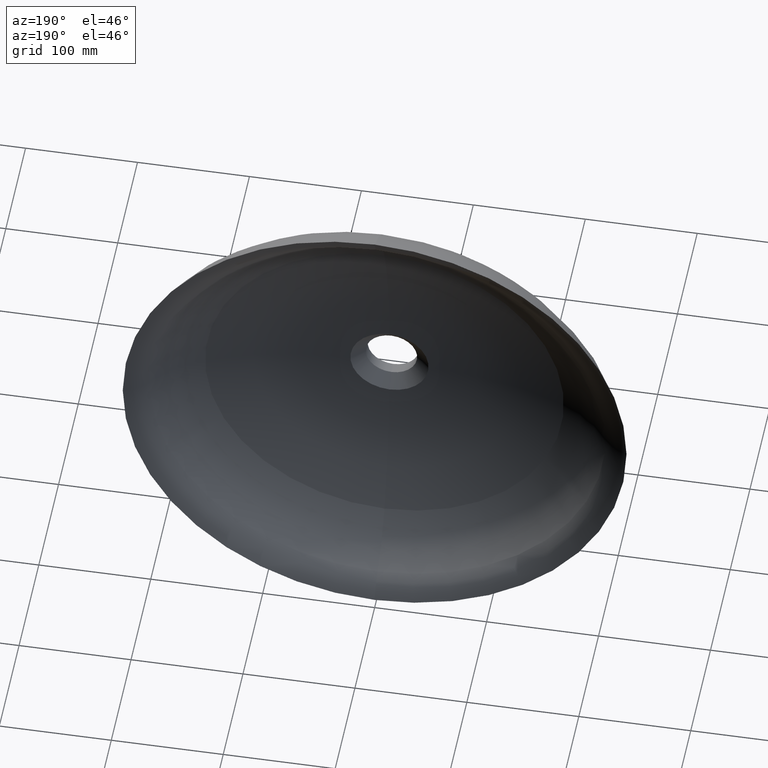
[diagram: clean part render]
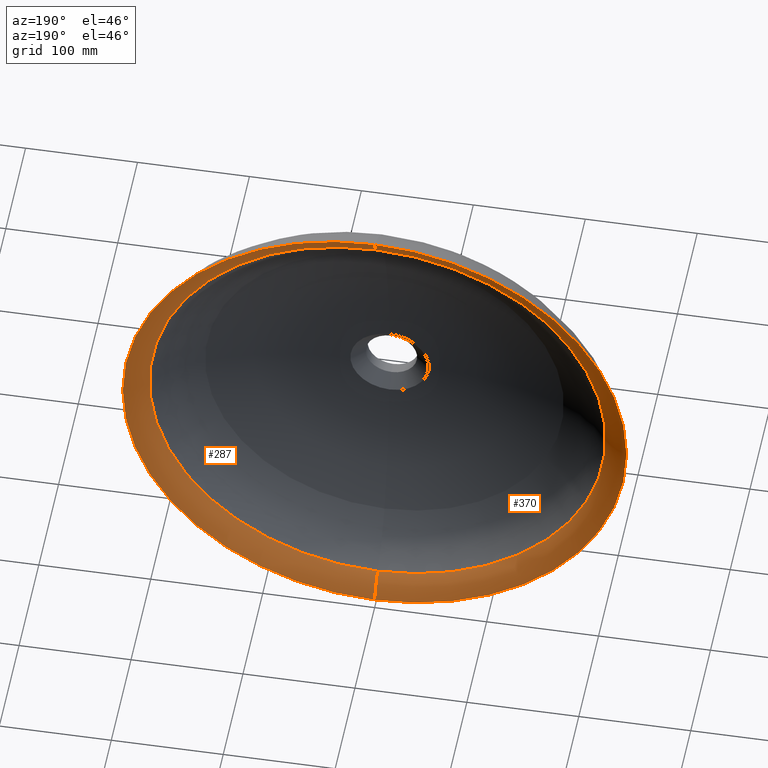
[diagram: same view with one multi-face feature highlighted, each face labeled with its STEP entity id]
A machine part, auxiliary view. The highlighted faces form ONE feature: a constant-radius fillet chain: 2 tangent blend faces with common blend radius 38.5109 mm. The faces share edges in the B-rep.
Their STEP definitions:
[1] entity #287 (Torus):
#18 = DIRECTION ( 'NONE',  ( 1.000000000000000000, 0.0000000000000000000, 1.224646799147353207E-16 ) ) ;
#27 = ORIENTED_EDGE ( 'NONE', *, *, #62, .T. ) ;
#50 = FACE_OUTER_BOUND ( 'NONE', #74, .T. ) ;
#55 = CARTESIAN_POINT ( 'NONE',  ( 5.658126656586371938E-14, -37.08579791896572431, -235.3796292147611666 ) ) ;
#57 = AXIS2_PLACEMENT_3D ( 'NONE', #55, #18, #292 ) ;
#62 = EDGE_CURVE ( 'NONE', #230, #318, #81, .T. ) ;
#63 = AXIS2_PLACEMENT_3D ( 'NONE', #159, #116, #154 ) ;
#64 = AXIS2_PLACEMENT_3D ( 'NONE', #119, #441, #319 ) ;
#74 = EDGE_LOOP ( 'NONE', ( #337, #27, #389, #258 ) ) ;
#81 = CIRCLE ( 'NONE', #57, 38.51094792292555979 ) ;
#116 = DIRECTION ( 'NONE',  ( -0.0000000000000000000, 1.000000000000000000, -0.0000000000000000000 ) ) ;
#119 = CARTESIAN_POINT ( 'NONE',  ( 2.775557561562891351E-14, -37.08579791896572431, 235.3796292147611666 ) ) ;
#154 = DIRECTION ( 'NONE',  ( 0.0000000000000000000, 0.0000000000000000000, 1.000000000000000000 ) ) ;
#159 = CARTESIAN_POINT ( 'NONE',  ( 2.775557561562891351E-14, -37.08579791896572431, 0.0000000000000000000 ) ) ;
#178 = CARTESIAN_POINT ( 'NONE',  ( 2.775557561562891351E-14, -3.469446951953614189E-15, 225.0000000000000284 ) ) ;
#184 = DIRECTION ( 'NONE',  ( 0.0000000000000000000, 0.0000000000000000000, 1.000000000000000000 ) ) ;
#230 = VERTEX_POINT ( 'NONE', #235 ) ;
#235 = CARTESIAN_POINT ( 'NONE',  ( 5.531012859644435971E-14, -3.469446951953614189E-15, -225.0000000000000284 ) ) ;
#242 = DIRECTION ( 'NONE',  ( -0.0000000000000000000, 1.000000000000000000, -0.0000000000000000000 ) ) ;
#255 = VERTEX_POINT ( 'NONE', #518 ) ;
#258 = ORIENTED_EDGE ( 'NONE', *, *, #378, .F. ) ;
#287 = ADVANCED_FACE ( 'NONE', ( #50 ), #293, .T. ) ;
#289 = EDGE_CURVE ( 'NONE', #255, #318, #398, .T. ) ;
#292 = DIRECTION ( 'NONE',  ( 1.224646799147352714E-16, 0.0000000000000000000, -1.000000000000000000 ) ) ;
#293 = TOROIDAL_SURFACE ( 'NONE', #63, 235.3796292147611666, 38.51094792292558111 ) ;
#318 = VERTEX_POINT ( 'NONE', #382 ) ;
#319 = DIRECTION ( 'NONE',  ( 0.0000000000000000000, 0.0000000000000000000, 1.000000000000000000 ) ) ;
#337 = ORIENTED_EDGE ( 'NONE', *, *, #422, .T. ) ;
#362 = DIRECTION ( 'NONE',  ( -0.0000000000000000000, 1.000000000000000000, -0.0000000000000000000 ) ) ;
#372 = AXIS2_PLACEMENT_3D ( 'NONE', #479, #362, #184 ) ;
#376 = CARTESIAN_POINT ( 'NONE',  ( 2.135878279796443735E-14, -15.00000000000001421, 0.0000000000000000000 ) ) ;
#378 = EDGE_CURVE ( 'NONE', #472, #255, #533, .T. ) ;
#382 = CARTESIAN_POINT ( 'NONE',  ( 5.271768420044853565E-14, -15.00000000000001421, -203.8310850295710281 ) ) ;
#389 = ORIENTED_EDGE ( 'NONE', *, *, #289, .F. ) ;
#397 = CIRCLE ( 'NONE', #372, 225.0000000000000284 ) ;
#398 = CIRCLE ( 'NONE', #487, 203.8310850295709997 ) ;
#422 = EDGE_CURVE ( 'NONE', #472, #230, #397, .T. ) ;
#441 = DIRECTION ( 'NONE',  ( -1.000000000000000000, 0.0000000000000000000, 0.0000000000000000000 ) ) ;
#472 = VERTEX_POINT ( 'NONE', #178 ) ;
#479 = CARTESIAN_POINT ( 'NONE',  ( 2.135878279796443735E-14, 0.0000000000000000000, 0.0000000000000000000 ) ) ;
#487 = AXIS2_PLACEMENT_3D ( 'NONE', #376, #242, #519 ) ;
#518 = CARTESIAN_POINT ( 'NONE',  ( 2.775557561562891351E-14, -15.00000000000001421, 203.8310850295710281 ) ) ;
#519 = DIRECTION ( 'NONE',  ( 0.0000000000000000000, 0.0000000000000000000, 1.000000000000000000 ) ) ;
#533 = CIRCLE ( 'NONE', #64, 38.51094792292555979 ) ;
[2] entity #370 (Torus):
#1 = FACE_OUTER_BOUND ( 'NONE', #484, .T. ) ;
#18 = DIRECTION ( 'NONE',  ( 1.000000000000000000, 0.0000000000000000000, 1.224646799147353207E-16 ) ) ;
#20 = DIRECTION ( 'NONE',  ( 0.0000000000000000000, 0.0000000000000000000, 1.000000000000000000 ) ) ;
#45 = AXIS2_PLACEMENT_3D ( 'NONE', #123, #454, #20 ) ;
#55 = CARTESIAN_POINT ( 'NONE',  ( 5.658126656586371938E-14, -37.08579791896572431, -235.3796292147611666 ) ) ;
#56 = DIRECTION ( 'NONE',  ( -0.0000000000000000000, 1.000000000000000000, -0.0000000000000000000 ) ) ;
#57 = AXIS2_PLACEMENT_3D ( 'NONE', #55, #18, #292 ) ;
#62 = EDGE_CURVE ( 'NONE', #230, #318, #81, .T. ) ;
#64 = AXIS2_PLACEMENT_3D ( 'NONE', #119, #441, #319 ) ;
#76 = TOROIDAL_SURFACE ( 'NONE', #474, 235.3796292147611666, 38.51094792292558111 ) ;
#81 = CIRCLE ( 'NONE', #57, 38.51094792292555979 ) ;
#91 = CARTESIAN_POINT ( 'NONE',  ( 2.775557561562891351E-14, -37.08579791896572431, 0.0000000000000000000 ) ) ;
#119 = CARTESIAN_POINT ( 'NONE',  ( 2.775557561562891351E-14, -37.08579791896572431, 235.3796292147611666 ) ) ;
#123 = CARTESIAN_POINT ( 'NONE',  ( 2.135878279796443735E-14, -15.00000000000001421, 0.0000000000000000000 ) ) ;
#158 = DIRECTION ( 'NONE',  ( 0.0000000000000000000, 0.0000000000000000000, 1.000000000000000000 ) ) ;
#178 = CARTESIAN_POINT ( 'NONE',  ( 2.775557561562891351E-14, -3.469446951953614189E-15, 225.0000000000000284 ) ) ;
#186 = AXIS2_PLACEMENT_3D ( 'NONE', #188, #56, #158 ) ;
#188 = CARTESIAN_POINT ( 'NONE',  ( 2.135878279796443735E-14, 0.0000000000000000000, 0.0000000000000000000 ) ) ;
#230 = VERTEX_POINT ( 'NONE', #235 ) ;
#235 = CARTESIAN_POINT ( 'NONE',  ( 5.531012859644435971E-14, -3.469446951953614189E-15, -225.0000000000000284 ) ) ;
#255 = VERTEX_POINT ( 'NONE', #518 ) ;
#292 = DIRECTION ( 'NONE',  ( 1.224646799147352714E-16, 0.0000000000000000000, -1.000000000000000000 ) ) ;
#304 = EDGE_CURVE ( 'NONE', #230, #472, #435, .T. ) ;
#318 = VERTEX_POINT ( 'NONE', #382 ) ;
#319 = DIRECTION ( 'NONE',  ( 0.0000000000000000000, 0.0000000000000000000, 1.000000000000000000 ) ) ;
#332 = DIRECTION ( 'NONE',  ( 0.0000000000000000000, 0.0000000000000000000, 1.000000000000000000 ) ) ;
#342 = ORIENTED_EDGE ( 'NONE', *, *, #62, .F. ) ;
#366 = ORIENTED_EDGE ( 'NONE', *, *, #304, .T. ) ;
#367 = EDGE_CURVE ( 'NONE', #318, #255, #489, .T. ) ;
#370 = ADVANCED_FACE ( 'NONE', ( #1 ), #76, .T. ) ;
#378 = EDGE_CURVE ( 'NONE', #472, #255, #533, .T. ) ;
#379 = DIRECTION ( 'NONE',  ( -0.0000000000000000000, 1.000000000000000000, -0.0000000000000000000 ) ) ;
#382 = CARTESIAN_POINT ( 'NONE',  ( 5.271768420044853565E-14, -15.00000000000001421, -203.8310850295710281 ) ) ;
#435 = CIRCLE ( 'NONE', #186, 225.0000000000000284 ) ;
#441 = DIRECTION ( 'NONE',  ( -1.000000000000000000, 0.0000000000000000000, 0.0000000000000000000 ) ) ;
#454 = DIRECTION ( 'NONE',  ( -0.0000000000000000000, 1.000000000000000000, -0.0000000000000000000 ) ) ;
#466 = ORIENTED_EDGE ( 'NONE', *, *, #378, .T. ) ;
#472 = VERTEX_POINT ( 'NONE', #178 ) ;
#474 = AXIS2_PLACEMENT_3D ( 'NONE', #91, #379, #332 ) ;
#484 = EDGE_LOOP ( 'NONE', ( #342, #366, #466, #496 ) ) ;
#489 = CIRCLE ( 'NONE', #45, 203.8310850295709997 ) ;
#496 = ORIENTED_EDGE ( 'NONE', *, *, #367, .F. ) ;
#518 = CARTESIAN_POINT ( 'NONE',  ( 2.775557561562891351E-14, -15.00000000000001421, 203.8310850295710281 ) ) ;
#533 = CIRCLE ( 'NONE', #64, 38.51094792292555979 ) ;